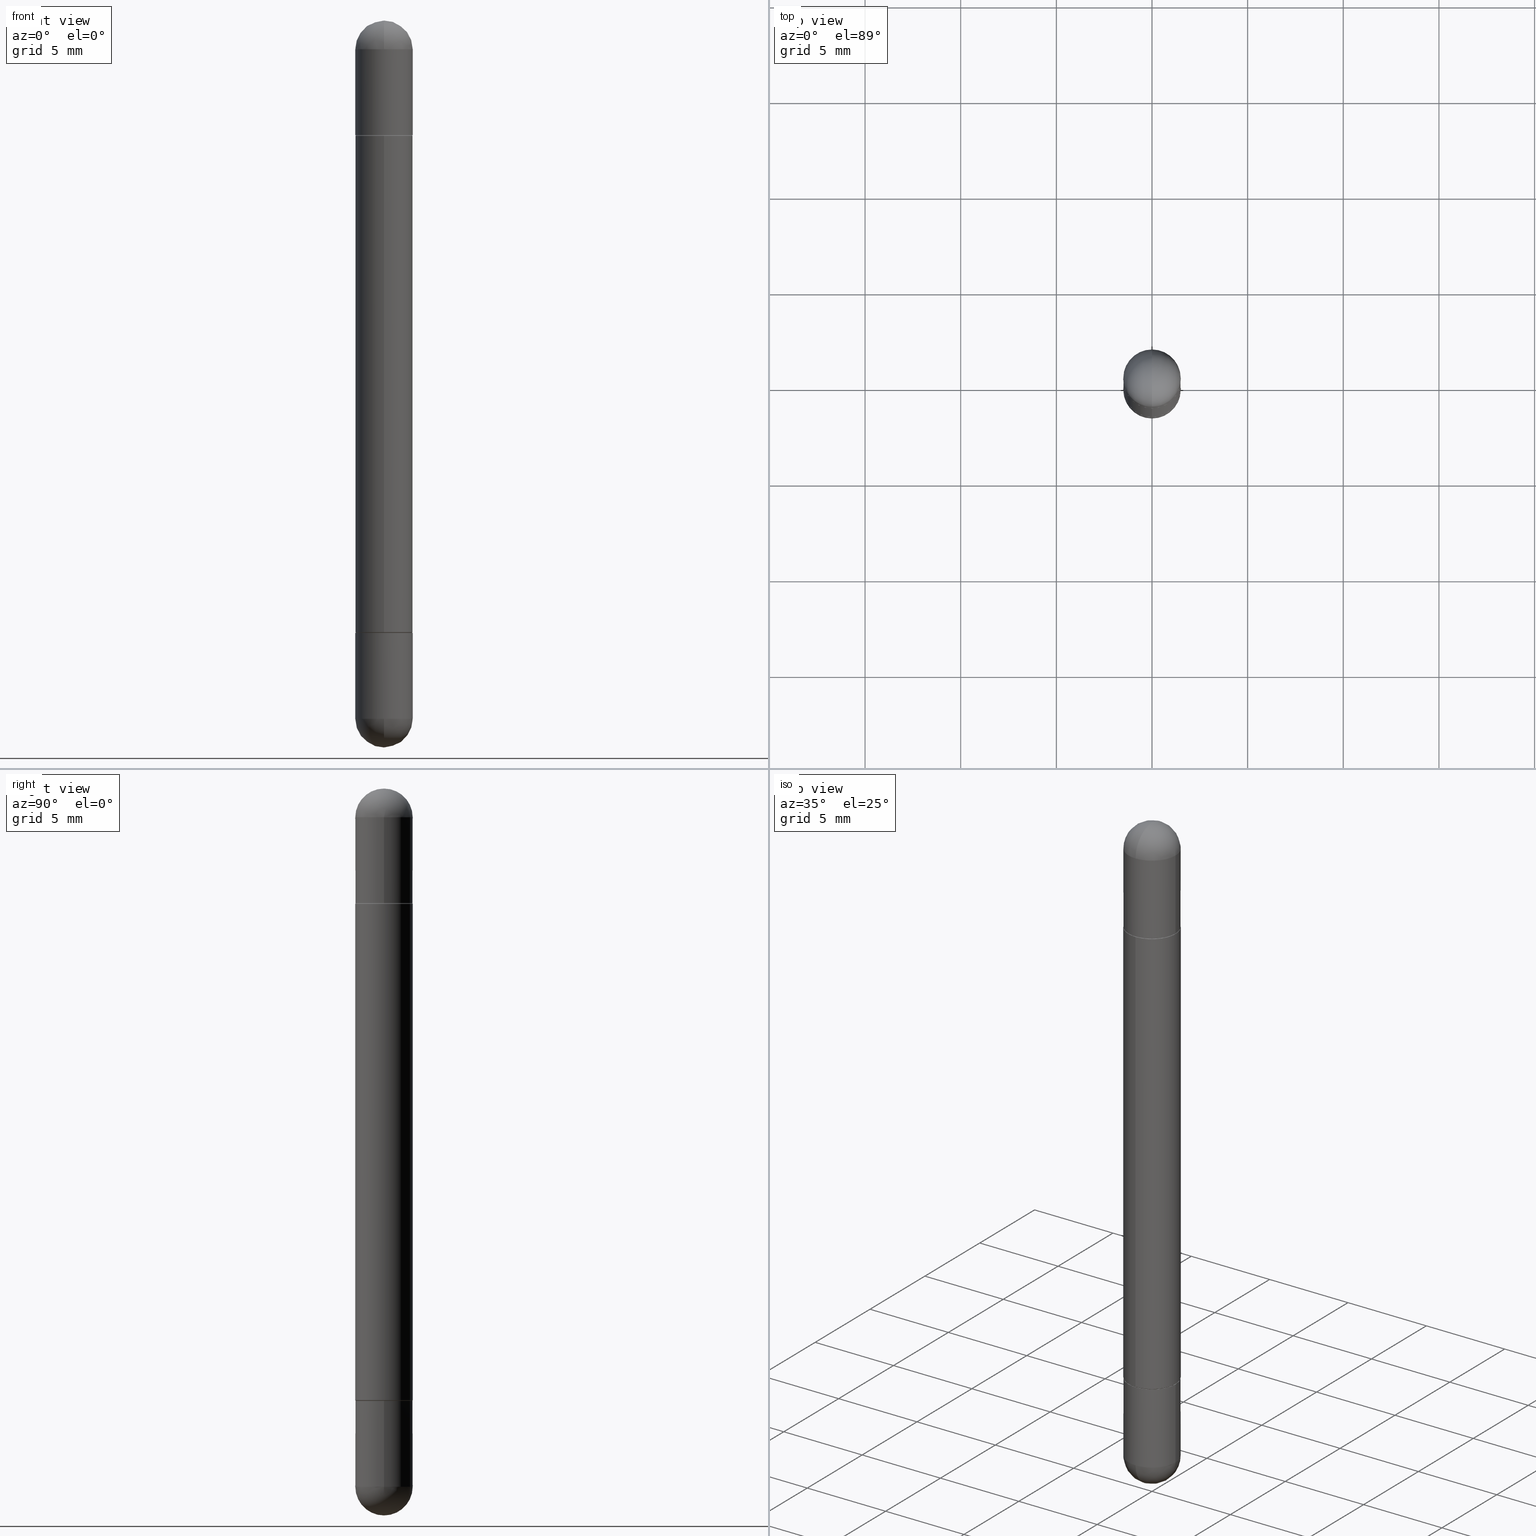
[diagram: canonical four-view strip — front | top / right | iso, engineering-drawing reading convention]
A machine part, canonical four-view strip (front | top / right | iso — engineering-drawing reading convention). The complete STEP part file that produces these views, byte-faithful:
ISO-10303-21;
HEADER;
FILE_DESCRIPTION (( 'STEP AP203' ),
    '1' );
FILE_NAME ('49119.STEP',
    '2024-03-01T12:53:46',
    ( '' ),
    ( '' ),
    'SwSTEP 2.0',
    'SolidWorks 2023',
    '' );
FILE_SCHEMA (( 'CONFIG_CONTROL_DESIGN' ));
ENDSEC;

DATA;
#1 = PERSON_AND_ORGANIZATION_ROLE ( 'design_owner' ) ;
#2 = DIRECTION ( 'NONE',  ( -2.445468806185136597E-29, 3.491481338843145583E-15, 1.000000000000000000 ) ) ;
#3 = ORIENTED_EDGE ( 'NONE', *, *, #436, .T. ) ;
#4 = ADVANCED_FACE ( 'NONE', ( #169 ), #607, .F. ) ;
#5 = ORIENTED_EDGE ( 'NONE', *, *, #523, .T. ) ;
#6 = ORIENTED_EDGE ( 'NONE', *, *, #561, .T. ) ;
#7 = DIRECTION ( 'NONE',  ( -4.937700262165390546E-15, -0.7071067811866658115, 0.7071067811864292230 ) ) ;
#8 = CLOSED_SHELL ( 'NONE', ( #577, #442, #423, #48, #754, #225, #223, #4 ) ) ;
#9 = EDGE_LOOP ( 'NONE', ( #653, #573, #470, #129, #483 ) ) ;
#10 = AXIS2_PLACEMENT_3D ( 'NONE', #765, #634, #201 ) ;
#11 = DIRECTION ( 'NONE',  ( -6.982962677686265922E-15, -1.000000000000000000, 4.626330217890358292E-15 ) ) ;
#12 = VECTOR ( 'NONE', #7, 39.37007874015748143 ) ;
#13 = EDGE_CURVE ( 'NONE', #519, #155, #730, .T. ) ;
#14 = EDGE_LOOP ( 'NONE', ( #770, #677 ) ) ;
#15 = VERTEX_POINT ( 'NONE', #422 ) ;
#16 = CARTESIAN_POINT ( 'NONE',  ( -4.123439461173441546E-16, -0.05905000000000452248, -0.2372000000000003272 ) ) ;
#17 = CARTESIAN_POINT ( 'NONE',  ( 1.832588647221437396E-29, -2.607140258145642371E-15, -0.7480500000000001037 ) ) ;
#18 = MANIFOLD_SOLID_BREP ( 'Combine1', #8 ) ;
#19 = DIRECTION ( 'NONE',  ( 2.449821064396012218E-29, -3.485248657370018036E-15, 1.000000000000000000 ) ) ;
#20 = ORIENTED_EDGE ( 'NONE', *, *, #75, .F. ) ;
#21 = ADVANCED_FACE ( 'NONE', ( #700 ), #389, .F. ) ;
#22 = CARTESIAN_POINT ( 'NONE',  ( -4.123439461173745750E-16, -0.05905000000000008159, -1.496100000000000430 ) ) ;
#23 = DESIGN_CONTEXT ( 'detailed design', #230, 'design' ) ;
#24 = EDGE_LOOP ( 'NONE', ( #239, #656 ) ) ;
#25 = DIRECTION ( 'NONE',  ( -6.982962677686265922E-15, -1.000000000000000000, 4.706025828879006204E-15 ) ) ;
#26 = ORIENTED_EDGE ( 'NONE', *, *, #581, .F. ) ;
#27 = CARTESIAN_POINT ( 'NONE',  ( 1.832588647221437396E-29, -2.607140258145642371E-15, -0.7480500000000001037 ) ) ;
#28 = DIRECTION ( 'NONE',  ( -2.445468806185136597E-29, 3.491481338843145583E-15, 1.000000000000000000 ) ) ;
#29 = AXIS2_PLACEMENT_3D ( 'NONE', #467, #19, #473 ) ;
#30 = AXIS2_PLACEMENT_3D ( 'NONE', #219, #156, #672 ) ;
#31 = APPROVAL_PERSON_ORGANIZATION ( #443, #800, #185 ) ;
#32 = SPHERICAL_SURFACE ( 'NONE', #449, 0.05905000000000025506 ) ;
#33 = ORIENTED_EDGE ( 'NONE', *, *, #641, .F. ) ;
#34 = PRODUCT_RELATED_PRODUCT_CATEGORY ( 'detail', '', ( #251 ) ) ;
#35 = DIRECTION ( 'NONE',  ( -2.445468806185136597E-29, 3.491481338843145583E-15, 1.000000000000000000 ) ) ;
#36 = CARTESIAN_POINT ( 'NONE',  ( 3.086529559032535160E-29, -4.391064783420485039E-15, -0.2362000000000003264 ) ) ;
#37 = CYLINDRICAL_SURFACE ( 'NONE', #708, 0.05905000000000008159 ) ;
#38 = DIRECTION ( 'NONE',  ( 1.000000000000000000, -6.982962677686266711E-15, 0.000000000000000000 ) ) ;
#39 = DIRECTION ( 'NONE',  ( -2.445468806185136597E-29, 3.491481338843145583E-15, -1.000000000000000000 ) ) ;
#40 = CIRCLE ( 'NONE', #322, 0.05905000000000001914 ) ;
#41 = CC_DESIGN_DATE_AND_TIME_ASSIGNMENT ( #808, #503, ( #381 ) ) ;
#42 = AXIS2_PLACEMENT_3D ( 'NONE', #537, #478, #212 ) ;
#43 = CIRCLE ( 'NONE', #435, 0.05905000000000014404 ) ;
#44 = CARTESIAN_POINT ( 'NONE',  ( 3.982519087706682683E-16, 0.05804999999999561899, -0.2362000000000001321 ) ) ;
#45 = LOCAL_TIME ( 7, 53, 45.00000000000000000, #325 ) ;
#46 = PLANE ( 'NONE',  #95 ) ;
#47 = DIRECTION ( 'NONE',  ( -2.445468806185136877E-29, 3.491481338843145188E-15, -1.000000000000000000 ) ) ;
#48 = ADVANCED_FACE ( 'NONE', ( #546 ), #175, .F. ) ;
#49 = FACE_OUTER_BOUND ( 'NONE', #252, .T. ) ;
#50 = EDGE_LOOP ( 'NONE', ( #154, #680 ) ) ;
#51 = CARTESIAN_POINT ( 'NONE',  ( 3.514260947928350449E-29, -5.017433257984542594E-15, -0.05905000000000028976 ) ) ;
#52 = LINE ( 'NONE', #497, #498 ) ;
#53 = CLOSED_SHELL ( 'NONE', ( #748, #284, #676, #21, #184 ) ) ;
#54 = VECTOR ( 'NONE', #167, 39.37007874015748143 ) ;
#55 = CALENDAR_DATE ( 2024, 1, 3 ) ;
#56 = ORIENTED_EDGE ( 'NONE', *, *, #523, .F. ) ;
#57 = AXIS2_PLACEMENT_3D ( 'NONE', #580, #412, #270 ) ;
#58 = CARTESIAN_POINT ( 'NONE',  ( -4.051124067683763770E-16, -0.05905000000000539678, -0.05905000000000049099 ) ) ;
#59 = EDGE_CURVE ( 'NONE', #353, #776, #229, .T. ) ;
#60 = DIRECTION ( 'NONE',  ( -6.982962677686265922E-15, -1.000000000000000000, -3.529519371659254456E-15 ) ) ;
#61 = PERSON_AND_ORGANIZATION ( #406, #96 ) ;
#62 = CARTESIAN_POINT ( 'NONE',  ( 3.183141170014464762E-29, -5.491615626124592102E-15, -1.437049999999999939 ) ) ;
#63 = ORIENTED_EDGE ( 'NONE', *, *, #472, .T. ) ;
#64 = APPROVAL ( #246, 'UNSPECIFIED' ) ;
#65 = VECTOR ( 'NONE', #98, 39.37007874015748143 ) ;
#66 = APPROVAL_STATUS ( 'not_yet_approved' ) ;
#67 = AXIS2_PLACEMENT_3D ( 'NONE', #756, #630, #578 ) ;
#68 = FACE_OUTER_BOUND ( 'NONE', #86, .T. ) ;
#69 = VERTEX_POINT ( 'NONE', #665 ) ;
#70 = EDGE_CURVE ( 'NONE', #590, #704, #620, .T. ) ;
#71 = CARTESIAN_POINT ( 'NONE',  ( -0.05905000000000001914, -4.288599812930171320E-15, -1.437049999999999939 ) ) ;
#72 = DIRECTION ( 'NONE',  ( -2.449821064396011658E-29, 3.485248657370018430E-15, -1.000000000000000000 ) ) ;
#73 = ORIENTED_EDGE ( 'NONE', *, *, #99, .T. ) ;
#74 = CARTESIAN_POINT ( 'NONE',  ( 3.084079737968140316E-29, -4.387579534763115600E-15, -0.2372000000000001330 ) ) ;
#75 = EDGE_CURVE ( 'NONE', #452, #521, #334, .T. ) ;
#76 = ORIENTED_EDGE ( 'NONE', *, *, #604, .T. ) ;
#77 = CARTESIAN_POINT ( 'NONE',  ( 3.086529559032535160E-29, -4.391064783420485039E-15, -1.259899999999999798 ) ) ;
#78 = CIRCLE ( 'NONE', #241, 0.05905000000000025506 ) ;
#79 = ORIENTED_EDGE ( 'NONE', *, *, #349, .F. ) ;
#80 = AXIS2_PLACEMENT_3D ( 'NONE', #237, #361, #102 ) ;
#81 = FACE_OUTER_BOUND ( 'NONE', #260, .T. ) ;
#82 = EDGE_CURVE ( 'NONE', #69, #391, #40, .T. ) ;
#83 = CIRCLE ( 'NONE', #351, 0.05905000000000008159 ) ;
#84 = LOCAL_TIME ( 7, 53, 45.00000000000000000, #576 ) ;
#85 = CARTESIAN_POINT ( 'NONE',  ( 3.183141170014464762E-29, -5.491615626124592102E-15, -0.05905000000000028976 ) ) ;
#86 = EDGE_LOOP ( 'NONE', ( #713, #79, #579, #777 ) ) ;
#87 = DIRECTION ( 'NONE',  ( 2.445468806185136597E-29, -3.491481338843145583E-15, 1.000000000000000000 ) ) ;
#88 = LINE ( 'NONE', #417, #12 ) ;
#89 = ORIENTED_EDGE ( 'NONE', *, *, #280, .T. ) ;
#90 = DIRECTION ( 'NONE',  ( 1.000000000000000000, -6.982962677686270655E-15, 0.000000000000000000 ) ) ;
#91 = EDGE_CURVE ( 'NONE', #330, #307, #363, .T. ) ;
#92 = CARTESIAN_POINT ( 'NONE',  ( 3.081046148912652946E-29, -4.398917338808479031E-15, -0.2362000000000003264 ) ) ;
#93 = CARTESIAN_POINT ( 'NONE',  ( 3.086529559032535160E-29, -4.391064783420485039E-15, -1.259899999999999798 ) ) ;
#94 = CARTESIAN_POINT ( 'NONE',  ( 3.330070981488499955E-29, -5.694171829508798064E-15, -1.496100000000000207 ) ) ;
#95 = AXIS2_PLACEMENT_3D ( 'NONE', #618, #682, #747 ) ;
#96 = ORGANIZATION ( 'UNSPECIFIED', 'UNSPECIFIED', '' ) ;
#97 = CARTESIAN_POINT ( 'NONE',  ( 4.123439461174084467E-16, 0.05904999999999487742, -1.437050000000000161 ) ) ;
#98 = DIRECTION ( 'NONE',  ( -4.937700262165390546E-15, -0.7071067811866658115, -0.7071067811864292230 ) ) ;
#99 = EDGE_CURVE ( 'NONE', #109, #624, #783, .T. ) ;
#100 = DIRECTION ( 'NONE',  ( 4.851104656541791790E-15, 0.7071067811866706965, -0.7071067811864243380 ) ) ;
#101 = ORIENTED_EDGE ( 'NONE', *, *, #108, .F. ) ;
#102 = DIRECTION ( 'NONE',  ( 1.000000000000000000, -6.982962677686270655E-15, 0.000000000000000000 ) ) ;
#103 = FACE_OUTER_BOUND ( 'NONE', #592, .T. ) ;
#104 = ORIENTED_EDGE ( 'NONE', *, *, #731, .F. ) ;
#105 = DIRECTION ( 'NONE',  ( -2.449821064396012218E-29, 3.485248657370018036E-15, 1.000000000000000000 ) ) ;
#106 = CIRCLE ( 'NONE', #560, 0.05805000000000000437 ) ;
#107 = CONICAL_SURFACE ( 'NONE', #735, 0.05805000000000000437, 0.7853981633976190313 ) ;
#108 = EDGE_CURVE ( 'NONE', #206, #521, #794, .T. ) ;
#109 = VERTEX_POINT ( 'NONE', #357 ) ;
#110 = CC_DESIGN_APPROVAL ( #800, ( #381 ) ) ;
#111 = FACE_OUTER_BOUND ( 'NONE', #420, .T. ) ;
#112 = ORIENTED_EDGE ( 'NONE', *, *, #287, .F. ) ;
#113 = DIRECTION ( 'NONE',  ( -6.982962677686265922E-15, -1.000000000000000000, -3.529519371659254456E-15 ) ) ;
#114 = CARTESIAN_POINT ( 'NONE',  ( 3.081046148912652946E-29, -4.398917338808479031E-15, -1.259899999999999798 ) ) ;
#115 = CARTESIAN_POINT ( 'NONE',  ( 3.514260947928350449E-29, -5.017433257984542594E-15, -0.05905000000000028976 ) ) ;
#116 = APPROVAL_DATE_TIME ( #810, #800 ) ;
#117 = ORIENTED_EDGE ( 'NONE', *, *, #552, .F. ) ;
#118 = EDGE_CURVE ( 'NONE', #440, #336, #278, .T. ) ;
#119 = CARTESIAN_POINT ( 'NONE',  ( 4.051124067684407678E-16, 0.05904999999999576560, -0.2371999999999999387 ) ) ;
#120 = AXIS2_PLACEMENT_3D ( 'NONE', #693, #818, #762 ) ;
#121 = PERSON_AND_ORGANIZATION ( #406, #96 ) ;
#122 = CARTESIAN_POINT ( 'NONE',  ( 3.081046148912652946E-29, -4.398917338808479031E-15, -0.2362000000000003264 ) ) ;
#123 = DATE_AND_TIME ( #697, #489 ) ;
#124 = ORIENTED_EDGE ( 'NONE', *, *, #710, .F. ) ;
#125 = DIRECTION ( 'NONE',  ( -2.449821064396012218E-29, 3.485248657370018036E-15, -1.000000000000000000 ) ) ;
#126 = CC_DESIGN_PERSON_AND_ORGANIZATION_ASSIGNMENT ( #379, #1, ( #251 ) ) ;
#127 = COORDINATED_UNIVERSAL_TIME_OFFSET ( 5, 0, .BEHIND. ) ;
#128 = DIRECTION ( 'NONE',  ( -2.449821064396012218E-29, 3.485248657370018430E-15, -1.000000000000000000 ) ) ;
#129 = ORIENTED_EDGE ( 'NONE', *, *, #70, .T. ) ;
#130 = ADVANCED_FACE ( 'NONE', ( #81 ), #214, .T. ) ;
#131 = AXIS2_PLACEMENT_3D ( 'NONE', #595, #678, #161 ) ;
#132 = CONICAL_SURFACE ( 'NONE', #395, 0.05805000000000000437, 0.7853981633976190313 ) ;
#133 = CARTESIAN_POINT ( 'NONE',  ( 3.514260947928350449E-29, -5.017433257984542594E-15, -1.437049999999999939 ) ) ;
#134 = AXIS2_PLACEMENT_3D ( 'NONE', #261, #759, #195 ) ;
#135 = CC_DESIGN_APPROVAL ( #64, ( #268 ) ) ;
#136 = EDGE_LOOP ( 'NONE', ( #101, #705, #183, #556 ) ) ;
#137 = DIRECTION ( 'NONE',  ( 1.000000000000000000, -6.982962677686265922E-15, -4.883557194083112340E-29 ) ) ;
#138 = ORIENTED_EDGE ( 'NONE', *, *, #306, .T. ) ;
#139 = ORIENTED_EDGE ( 'NONE', *, *, #782, .F. ) ;
#140 = ORIENTED_EDGE ( 'NONE', *, *, #345, .F. ) ;
#141 = ORIENTED_EDGE ( 'NONE', *, *, #13, .F. ) ;
#142 = CARTESIAN_POINT ( 'NONE',  ( 3.514260947928350449E-29, -5.017433257984542594E-15, -1.437049999999999939 ) ) ;
#143 = EDGE_CURVE ( 'NONE', #276, #776, #415, .T. ) ;
#144 = ORIENTED_EDGE ( 'NONE', *, *, #166, .T. ) ;
#145 = DIRECTION ( 'NONE',  ( 1.000000000000000000, -6.982962677686266711E-15, 4.876176775795935793E-29 ) ) ;
#146 = CARTESIAN_POINT ( 'NONE',  ( 4.016821577695545181E-16, 0.05804999999999561899, -0.2362000000000001321 ) ) ;
#147 = VERTEX_POINT ( 'NONE', #658 ) ;
#148 = VERTEX_POINT ( 'NONE', #224 ) ;
#149 = AXIS2_PLACEMENT_3D ( 'NONE', #526, #35, #145 ) ;
#150 = DIRECTION ( 'NONE',  ( -2.449821064396012218E-29, 3.485248657370018036E-15, 1.000000000000000000 ) ) ;
#151 = AXIS2_PLACEMENT_3D ( 'NONE', #525, #331, #724 ) ;
#152 = ORIENTED_EDGE ( 'NONE', *, *, #610, .T. ) ;
#153 = CARTESIAN_POINT ( 'NONE',  ( 4.123439461174084467E-16, 0.05904999999999487742, -0.05905000000000008159 ) ) ;
#154 = ORIENTED_EDGE ( 'NONE', *, *, #430, .T. ) ;
#155 = VERTEX_POINT ( 'NONE', #466 ) ;
#156 = DIRECTION ( 'NONE',  ( -2.449821064396012218E-29, 3.485248657370018036E-15, -1.000000000000000000 ) ) ;
#157 = CARTESIAN_POINT ( 'NONE',  ( 3.514260947928350449E-29, -5.017433257984542594E-15, -1.437049999999999939 ) ) ;
#158 = CARTESIAN_POINT ( 'NONE',  ( 3.081046148912652946E-29, -4.398917338808479031E-15, -0.2362000000000003264 ) ) ;
#159 = DIRECTION ( 'NONE',  ( -2.445468806185136877E-29, 3.491481338843145188E-15, 1.000000000000000000 ) ) ;
#160 = CARTESIAN_POINT ( 'NONE',  ( 0.05905000000000001914, -4.123439461173741806E-16, -1.496100000000000207 ) ) ;
#161 = DIRECTION ( 'NONE',  ( -6.982962677686265922E-15, -1.000000000000000000, -3.529519371659254456E-15 ) ) ;
#162 = AXIS2_PLACEMENT_3D ( 'NONE', #226, #688, #771 ) ;
#163 = CIRCLE ( 'NONE', #10, 0.05905000000000001914 ) ;
#164 = CIRCLE ( 'NONE', #475, 0.05805000000000000437 ) ;
#165 = DIRECTION ( 'NONE',  ( -2.449821064396012218E-29, 3.485248657370018036E-15, 1.000000000000000000 ) ) ;
#166 = EDGE_CURVE ( 'NONE', #109, #391, #78, .T. ) ;
#167 = DIRECTION ( 'NONE',  ( -2.445468806185136877E-29, 3.491481338843145188E-15, -1.000000000000000000 ) ) ;
#168 = DIRECTION ( 'NONE',  ( -2.445468806185136877E-29, 3.491481338843145188E-15, -1.000000000000000000 ) ) ;
#169 = FACE_OUTER_BOUND ( 'NONE', #661, .T. ) ;
#170 = DIRECTION ( 'NONE',  ( -2.445468806185136597E-29, 3.491481338843145583E-15, -1.000000000000000000 ) ) ;
#171 = ADVANCED_FACE ( 'NONE', ( #222 ), #715, .T. ) ;
#172 = EDGE_LOOP ( 'NONE', ( #463, #339 ) ) ;
#173 = EDGE_LOOP ( 'NONE', ( #321, #344, #20, #657, #63 ) ) ;
#174 = CARTESIAN_POINT ( 'NONE',  ( 3.183141170014464762E-29, -5.491615626124592102E-15, -0.05905000000000028976 ) ) ;
#175 = PLANE ( 'NONE',  #755 ) ;
#176 = CARTESIAN_POINT ( 'NONE',  ( -4.053609834396569077E-16, -0.05805000000000438976, -0.2362000000000005484 ) ) ;
#177 = AXIS2_PLACEMENT_3D ( 'NONE', #303, #542, #365 ) ;
#178 = APPLICATION_CONTEXT ( 'configuration controlled 3d designs of mechanical parts and assemblies' ) ;
#179 = ORIENTED_EDGE ( 'NONE', *, *, #613, .F. ) ;
#180 = AXIS2_PLACEMENT_3D ( 'NONE', #227, #232, #427 ) ;
#181 = LINE ( 'NONE', #44, #192 ) ;
#182 = CARTESIAN_POINT ( 'NONE',  ( -0.05905000000000001914, -4.303062891628101254E-15, -0.2362000000000003264 ) ) ;
#183 = ORIENTED_EDGE ( 'NONE', *, *, #779, .T. ) ;
#184 = ADVANCED_FACE ( 'NONE', ( #343 ), #729, .T. ) ;
#185 = APPROVAL_ROLE ( '' ) ;
#186 = ORIENTED_EDGE ( 'NONE', *, *, #403, .F. ) ;
#187 = LINE ( 'NONE', #444, #54 ) ;
#188 = DATE_AND_TIME ( #249, #84 ) ;
#189 = DIRECTION ( 'NONE',  ( 2.445468806185136597E-29, -3.491481338843145583E-15, 1.000000000000000000 ) ) ;
#190 = AXIS2_PLACEMENT_3D ( 'NONE', #753, #565, #712 ) ;
#191 = PERSON_AND_ORGANIZATION ( #406, #96 ) ;
#192 = VECTOR ( 'NONE', #100, 39.37007874015748143 ) ;
#193 = DIRECTION ( 'NONE',  ( -2.449821064396012218E-29, 3.485248657370018036E-15, -1.000000000000000000 ) ) ;
#194 = EDGE_CURVE ( 'NONE', #332, #723, #757, .T. ) ;
#195 = DIRECTION ( 'NONE',  ( 1.000000000000000000, 0.000000000000000000, 0.000000000000000000 ) ) ;
#196 = CYLINDRICAL_SURFACE ( 'NONE', #366, 0.05905000000000008159 ) ;
#197 = ORIENTED_EDGE ( 'NONE', *, *, #82, .T. ) ;
#198 = EDGE_CURVE ( 'NONE', #667, #276, #459, .T. ) ;
#199 = VERTEX_POINT ( 'NONE', #269 ) ;
#200 = APPROVAL_DATE_TIME ( #817, #772 ) ;
#201 = DIRECTION ( 'NONE',  ( 1.000000000000000000, -6.982962677686270655E-15, 0.000000000000000000 ) ) ;
#202 = ORIENTED_EDGE ( 'NONE', *, *, #264, .F. ) ;
#203 = AXIS2_PLACEMENT_3D ( 'NONE', #392, #644, #425 ) ;
#204 = CARTESIAN_POINT ( 'NONE',  ( 0.000000000000000000, 0.000000000000000000, -1.496100000000000207 ) ) ;
#205 = VECTOR ( 'NONE', #402, 39.37007874015748143 ) ;
#206 = VERTEX_POINT ( 'NONE', #663 ) ;
#207 = CARTESIAN_POINT ( 'NONE',  ( 4.123439461174084467E-16, 0.05904999999999487742, -0.05905000000000008159 ) ) ;
#208 = ORIENTED_EDGE ( 'NONE', *, *, #13, .T. ) ;
#209 = CARTESIAN_POINT ( 'NONE',  ( 3.514260947928350449E-29, -5.017433257984542594E-15, -0.05905000000000028976 ) ) ;
#210 = ORIENTED_EDGE ( 'NONE', *, *, #681, .T. ) ;
#211 = CARTESIAN_POINT ( 'NONE',  ( 3.982519087706682683E-16, 0.05804999999999561899, -0.2362000000000001321 ) ) ;
#212 = DIRECTION ( 'NONE',  ( -6.982962677686265922E-15, -1.000000000000000000, -3.529519371659254456E-15 ) ) ;
#213 = ORIENTED_EDGE ( 'NONE', *, *, #681, .F. ) ;
#214 = CONICAL_SURFACE ( 'NONE', #131, 0.05805000000000000437, 0.7853981633976190313 ) ;
#215 = FACE_OUTER_BOUND ( 'NONE', #788, .T. ) ;
#216 = CIRCLE ( 'NONE', #684, 0.05905000000000001914 ) ;
#217 = EDGE_CURVE ( 'NONE', #333, #147, #574, .T. ) ;
#218 = AXIS2_PLACEMENT_3D ( 'NONE', #92, #728, #468 ) ;
#219 = CARTESIAN_POINT ( 'NONE',  ( 0.000000000000000000, 0.000000000000000000, -1.496100000000000207 ) ) ;
#220 = DIRECTION ( 'NONE',  ( -2.449821064396012218E-29, 3.485248657370018036E-15, 1.000000000000000000 ) ) ;
#221 = ORIENTED_EDGE ( 'NONE', *, *, #70, .F. ) ;
#222 = FACE_OUTER_BOUND ( 'NONE', #699, .T. ) ;
#223 = ADVANCED_FACE ( 'NONE', ( #719 ), #132, .T. ) ;
#224 = CARTESIAN_POINT ( 'NONE',  ( 0.05905000000000001914, -4.811261284925853162E-15, -1.259899999999999798 ) ) ;
#225 = ADVANCED_FACE ( 'NONE', ( #277 ), #529, .T. ) ;
#226 = CARTESIAN_POINT ( 'NONE',  ( 3.514260947928350449E-29, -5.017433257984542594E-15, -0.05905000000000028976 ) ) ;
#227 = CARTESIAN_POINT ( 'NONE',  ( 3.086529559032535160E-29, -4.391064783420485039E-15, -0.2362000000000003264 ) ) ;
#228 = DIRECTION ( 'NONE',  ( -4.937700262165390546E-15, -0.7071067811866658115, -0.7071067811864292230 ) ) ;
#229 = CIRCLE ( 'NONE', #29, 0.05905000000000014404 ) ;
#230 = APPLICATION_CONTEXT ( 'configuration controlled 3d designs of mechanical parts and assemblies' ) ;
#231 = VECTOR ( 'NONE', #47, 39.37007874015748143 ) ;
#232 = DIRECTION ( 'NONE',  ( -2.449821064396012218E-29, 3.485248657370018036E-15, -1.000000000000000000 ) ) ;
#233 = FACE_OUTER_BOUND ( 'NONE', #635, .T. ) ;
#234 = CARTESIAN_POINT ( 'NONE',  ( 0.05905000000000001914, -4.811261284925853162E-15, -0.2362000000000003264 ) ) ;
#235 = ORIENTED_EDGE ( 'NONE', *, *, #143, .F. ) ;
#236 = VERTEX_POINT ( 'NONE', #94 ) ;
#237 = CARTESIAN_POINT ( 'NONE',  ( 3.514260947928350449E-29, -5.017433257984542594E-15, -0.05905000000000028976 ) ) ;
#238 = FACE_OUTER_BOUND ( 'NONE', #172, .T. ) ;
#239 = ORIENTED_EDGE ( 'NONE', *, *, #287, .T. ) ;
#240 = CARTESIAN_POINT ( 'NONE',  ( 4.051124067684279981E-16, 0.05904999999999575866, -1.258900000000000352 ) ) ;
#241 = AXIS2_PLACEMENT_3D ( 'NONE', #781, #271, #522 ) ;
#242 = VECTOR ( 'NONE', #567, 39.37007874015748143 ) ;
#243 = CC_DESIGN_APPROVAL ( #772, ( #500 ) ) ;
#244 = LINE ( 'NONE', #557, #257 ) ;
#245 = FACE_OUTER_BOUND ( 'NONE', #433, .T. ) ;
#246 = APPROVAL_STATUS ( 'not_yet_approved' ) ;
#247 = FACE_OUTER_BOUND ( 'NONE', #9, .T. ) ;
#248 = ADVANCED_FACE ( 'NONE', ( #606 ), #789, .F. ) ;
#249 = CALENDAR_DATE ( 2024, 1, 3 ) ;
#250 = SPHERICAL_SURFACE ( 'NONE', #67, 0.05905000000000025506 ) ;
#251 = PRODUCT ( '49119', '49119', '', ( #501 ) ) ;
#252 = EDGE_LOOP ( 'NONE', ( #335, #405, #686, #221, #186 ) ) ;
#253 = VECTOR ( 'NONE', #439, 39.37007874015748143 ) ;
#254 = CIRCLE ( 'NONE', #311, 0.05905000000000014404 ) ;
#255 = CALENDAR_DATE ( 2024, 1, 3 ) ;
#256 = ADVANCED_FACE ( 'NONE', ( #49 ), #798, .T. ) ;
#257 = VECTOR ( 'NONE', #485, 39.37007874015748143 ) ;
#258 = DIRECTION ( 'NONE',  ( 1.000000000000000000, -6.982962677686270655E-15, 0.000000000000000000 ) ) ;
#259 = ADVANCED_FACE ( 'NONE', ( #233 ), #37, .T. ) ;
#260 = EDGE_LOOP ( 'NONE', ( #649, #370, #583, #235 ) ) ;
#261 = CARTESIAN_POINT ( 'NONE',  ( 0.000000000000000000, 0.000000000000000000, 0.000000000000000000 ) ) ;
#262 = LINE ( 'NONE', #461, #530 ) ;
#263 = CARTESIAN_POINT ( 'NONE',  ( 3.514260947928350449E-29, -5.017433257984542594E-15, -0.05905000000000028976 ) ) ;
#264 = EDGE_CURVE ( 'NONE', #622, #541, #52, .T. ) ;
#265 = AXIS2_PLACEMENT_3D ( 'NONE', #313, #125, #60 ) ;
#266 = DIRECTION ( 'NONE',  ( -6.982962677686265922E-15, -1.000000000000000000, 4.706025828879006204E-15 ) ) ;
#267 = AXIS2_PLACEMENT_3D ( 'NONE', #142, #342, #527 ) ;
#268 = PRODUCT_DEFINITION_FORMATION_WITH_SPECIFIED_SOURCE ( 'ANY', '', #251, .NOT_KNOWN. ) ;
#269 = CARTESIAN_POINT ( 'NONE',  ( 4.051124067684407678E-16, 0.05904999999999576560, -0.2371999999999999387 ) ) ;
#270 = DIRECTION ( 'NONE',  ( 6.982962677686265922E-15, 1.000000000000000000, -4.626330217890349615E-15 ) ) ;
#271 = DIRECTION ( 'NONE',  ( 1.000000000000000000, -6.860497997771530774E-15, -4.840798879624142912E-29 ) ) ;
#272 = ADVANCED_FACE ( 'NONE', ( #245 ), #555, .F. ) ;
#273 = ORIENTED_EDGE ( 'NONE', *, *, #91, .F. ) ;
#274 = ORIENTED_EDGE ( 'NONE', *, *, #356, .T. ) ;
#275 = DIRECTION ( 'NONE',  ( -7.105427357601001070E-15, -1.000000000000000000, 0.000000000000000000 ) ) ;
#276 = VERTEX_POINT ( 'NONE', #176 ) ;
#277 = FACE_OUTER_BOUND ( 'NONE', #816, .T. ) ;
#278 = CIRCLE ( 'NONE', #447, 0.05905000000000001914 ) ;
#279 = DIRECTION ( 'NONE',  ( -6.982962677686265922E-15, -1.000000000000000000, 4.706025828879006204E-15 ) ) ;
#280 = EDGE_CURVE ( 'NONE', #456, #314, #106, .T. ) ;
#281 = CIRCLE ( 'NONE', #382, 0.05905000000000025506 ) ;
#282 = ORIENTED_EDGE ( 'NONE', *, *, #416, .T. ) ;
#283 = DIRECTION ( 'NONE',  ( 2.445468806185136597E-29, -3.491481338843145583E-15, 1.000000000000000000 ) ) ;
#284 = ADVANCED_FACE ( 'NONE', ( #502 ), #308, .T. ) ;
#285 = CARTESIAN_POINT ( 'NONE',  ( 0.05905000000000001914, -5.120519244513884944E-15, -0.05905000000000028976 ) ) ;
#286 = DIRECTION ( 'NONE',  ( -1.000000000000000000, 6.982962677686265922E-15, 4.883557194083112340E-29 ) ) ;
#287 = EDGE_CURVE ( 'NONE', #622, #288, #804, .T. ) ;
#288 = VERTEX_POINT ( 'NONE', #429 ) ;
#289 = DIRECTION ( 'NONE',  ( -6.982962677686265922E-15, -1.000000000000000000, 3.485248657370018430E-15 ) ) ;
#290 = DIRECTION ( 'NONE',  ( -2.449821064396012218E-29, 3.485248657370018036E-15, -1.000000000000000000 ) ) ;
#291 = DIMENSIONAL_EXPONENTS ( 1.000000000000000000, 0.000000000000000000, 0.000000000000000000, 0.000000000000000000, 0.000000000000000000, 0.000000000000000000, 0.000000000000000000 ) ;
#292 = DIRECTION ( 'NONE',  ( 6.982962677686265922E-15, 1.000000000000000000, 3.469747663417762014E-15 ) ) ;
#293 = MANIFOLD_SOLID_BREP ( 'Body-Move/Copy2[1]', #558 ) ;
#294 = ADVANCED_FACE ( 'NONE', ( #683 ), #46, .F. ) ;
#295 = FACE_OUTER_BOUND ( 'NONE', #480, .T. ) ;
#296 = CARTESIAN_POINT ( 'NONE',  ( 0.000000000000000000, 0.000000000000000000, -1.496100000000000207 ) ) ;
#297 = AXIS2_PLACEMENT_3D ( 'NONE', #93, #532, #289 ) ;
#298 = CIRCLE ( 'NONE', #721, 0.05905000000000001914 ) ;
#299 = CIRCLE ( 'NONE', #218, 0.05905000000000001914 ) ;
#300 = LOCAL_TIME ( 7, 53, 45.00000000000000000, #513 ) ;
#301 = PLANE ( 'NONE',  #722 ) ;
#302 = ORIENTED_EDGE ( 'NONE', *, *, #750, .T. ) ;
#303 = CARTESIAN_POINT ( 'NONE',  ( 3.086529559032535160E-29, -4.391064783420485039E-15, -0.2362000000000003264 ) ) ;
#304 = CARTESIAN_POINT ( 'NONE',  ( 0.05905000000000001914, -4.123439461173741806E-16, -1.496100000000000207 ) ) ;
#305 = DIRECTION ( 'NONE',  ( 1.000000000000000000, -6.982962677686270655E-15, 0.000000000000000000 ) ) ;
#306 = EDGE_CURVE ( 'NONE', #608, #333, #187, .T. ) ;
#307 = VERTEX_POINT ( 'NONE', #739 ) ;
#308 = SPHERICAL_SURFACE ( 'NONE', #518, 0.05905000000000025506 ) ;
#309 = DIRECTION ( 'NONE',  ( 1.000000000000000000, -6.982962677686270655E-15, 0.000000000000000000 ) ) ;
#310 = CARTESIAN_POINT ( 'NONE',  ( 3.183141170014464762E-29, -5.491615626124592102E-15, -0.05905000000000028976 ) ) ;
#311 = AXIS2_PLACEMENT_3D ( 'NONE', #615, #165, #554 ) ;
#312 = CALENDAR_DATE ( 2024, 1, 3 ) ;
#313 = CARTESIAN_POINT ( 'NONE',  ( 3.086529559032535160E-29, -4.391064783420485039E-15, -0.2362000000000003264 ) ) ;
#314 = VERTEX_POINT ( 'NONE', #691 ) ;
#315 = EDGE_CURVE ( 'NONE', #521, #608, #448, .T. ) ;
#316 =( NAMED_UNIT ( * ) SI_UNIT ( $, .STERADIAN. ) SOLID_ANGLE_UNIT ( ) );
#317 = CARTESIAN_POINT ( 'NONE',  ( 0.05905000000000001914, -5.120519244513884944E-15, -0.05905000000000028976 ) ) ;
#318 = EDGE_CURVE ( 'NONE', #288, #622, #600, .T. ) ;
#319 = APPROVAL_ROLE ( '' ) ;
#320 = FACE_OUTER_BOUND ( 'NONE', #551, .T. ) ;
#321 = ORIENTED_EDGE ( 'NONE', *, *, #306, .F. ) ;
#322 = AXIS2_PLACEMENT_3D ( 'NONE', #209, #283, #90 ) ;
#323 = CIRCLE ( 'NONE', #486, 0.05905000000000001914 ) ;
#324 = CIRCLE ( 'NONE', #616, 0.05905000000000001914 ) ;
#325 = COORDINATED_UNIVERSAL_TIME_OFFSET ( 5, 0, .BEHIND. ) ;
#326 = CARTESIAN_POINT ( 'NONE',  ( 3.081046148912652946E-29, -4.398917338808479031E-15, -1.259899999999999798 ) ) ;
#327 = ORIENTED_EDGE ( 'NONE', *, *, #315, .T. ) ;
#328 =( CONVERSION_BASED_UNIT ( 'INCH', #362 ) LENGTH_UNIT ( ) NAMED_UNIT ( #291 ) );
#329 = SPHERICAL_SURFACE ( 'NONE', #57, 0.05905000000000025506 ) ;
#330 = VERTEX_POINT ( 'NONE', #801 ) ;
#331 = DIRECTION ( 'NONE',  ( 2.449821064396012218E-29, -3.485248657370018036E-15, 1.000000000000000000 ) ) ;
#332 = VERTEX_POINT ( 'NONE', #240 ) ;
#333 = VERTEX_POINT ( 'NONE', #182 ) ;
#334 = CIRCLE ( 'NONE', #162, 0.05905000000000001914 ) ;
#335 = ORIENTED_EDGE ( 'NONE', *, *, #82, .F. ) ;
#336 = VERTEX_POINT ( 'NONE', #494 ) ;
#337 = DIRECTION ( 'NONE',  ( -2.449821064396012218E-29, 3.485248657370018430E-15, -1.000000000000000000 ) ) ;
#338 = VECTOR ( 'NONE', #424, 39.37007874015748143 ) ;
#339 = ORIENTED_EDGE ( 'NONE', *, *, #651, .F. ) ;
#340 = CARTESIAN_POINT ( 'NONE',  ( 0.000000000000000000, 0.000000000000000000, -1.496100000000000207 ) ) ;
#341 = EDGE_LOOP ( 'NONE', ( #696, #26, #640, #458 ) ) ;
#342 = DIRECTION ( 'NONE',  ( -2.445468806185136597E-29, 3.491481338843145583E-15, 1.000000000000000000 ) ) ;
#343 = FACE_OUTER_BOUND ( 'NONE', #173, .T. ) ;
#344 = ORIENTED_EDGE ( 'NONE', *, *, #315, .F. ) ;
#345 = EDGE_CURVE ( 'NONE', #336, #148, #743, .T. ) ;
#346 = DIRECTION ( 'NONE',  ( 1.000000000000000000, -6.860497997771530774E-15, -4.840798879624142912E-29 ) ) ;
#347 = DIRECTION ( 'NONE',  ( -6.982962677686266711E-15, -1.000000000000000000, 0.000000000000000000 ) ) ;
#348 = DIRECTION ( 'NONE',  ( 1.000000000000000000, -6.982962677686270655E-15, 0.000000000000000000 ) ) ;
#349 = EDGE_CURVE ( 'NONE', #776, #353, #614, .T. ) ;
#350 = AXIS2_PLACEMENT_3D ( 'NONE', #296, #39, #548 ) ;
#351 = AXIS2_PLACEMENT_3D ( 'NONE', #27, #482, #593 ) ;
#352 = DIRECTION ( 'NONE',  ( 1.000000000000000000, -6.982962677686266711E-15, 0.000000000000000000 ) ) ;
#353 = VERTEX_POINT ( 'NONE', #119 ) ;
#354 = DIRECTION ( 'NONE',  ( 2.438088387897960049E-29, -3.491481338843145188E-15, 1.000000000000000000 ) ) ;
#355 = ORIENTED_EDGE ( 'NONE', *, *, #280, .F. ) ;
#356 = EDGE_CURVE ( 'NONE', #590, #624, #298, .T. ) ;
#357 = CARTESIAN_POINT ( 'NONE',  ( 3.330070981488499955E-29, -5.694171829508798064E-15, -3.414809992080329023E-17 ) ) ;
#358 = ORIENTED_EDGE ( 'NONE', *, *, #664, .T. ) ;
#359 = CARTESIAN_POINT ( 'NONE',  ( -4.051124067683763770E-16, -0.05905000000000539678, -0.05905000000000049099 ) ) ;
#360 = EDGE_LOOP ( 'NONE', ( #56, #282, #453, #601 ) ) ;
#361 = DIRECTION ( 'NONE',  ( 2.445468806185136597E-29, -3.491481338843145583E-15, 1.000000000000000000 ) ) ;
#362 = LENGTH_MEASURE_WITH_UNIT ( LENGTH_MEASURE( 0.02539999999999999897 ), #732 );
#363 = CIRCLE ( 'NONE', #707, 0.05905000000000008159 ) ;
#364 = ORIENTED_EDGE ( 'NONE', *, *, #403, .T. ) ;
#365 = DIRECTION ( 'NONE',  ( -6.982962677686265922E-15, -1.000000000000000000, -3.529519371659254456E-15 ) ) ;
#366 = AXIS2_PLACEMENT_3D ( 'NONE', #204, #193, #388 ) ;
#367 = AXIS2_PLACEMENT_3D ( 'NONE', #51, #540, #371 ) ;
#368 = CC_DESIGN_SECURITY_CLASSIFICATION ( #500, ( #268 ) ) ;
#369 = ADVANCED_FACE ( 'NONE', ( #68 ), #196, .T. ) ;
#370 = ORIENTED_EDGE ( 'NONE', *, *, #726, .T. ) ;
#371 = DIRECTION ( 'NONE',  ( 1.000000000000000000, -6.982962677686270655E-15, 0.000000000000000000 ) ) ;
#372 = EDGE_LOOP ( 'NONE', ( #761, #493 ) ) ;
#373 = DIRECTION ( 'NONE',  ( -6.982962677686265922E-15, -1.000000000000000000, -4.626330217890363025E-15 ) ) ;
#374 = ORIENTED_EDGE ( 'NONE', *, *, #108, .T. ) ;
#375 = EDGE_CURVE ( 'NONE', #69, #15, #811, .T. ) ;
#376 = CARTESIAN_POINT ( 'NONE',  ( 0.000000000000000000, 0.000000000000000000, -1.496100000000000207 ) ) ;
#377 = EDGE_CURVE ( 'NONE', #704, #15, #163, .T. ) ;
#378 = DIRECTION ( 'NONE',  ( 2.445468806185136597E-29, -3.491481338843145583E-15, 1.000000000000000000 ) ) ;
#379 = PERSON_AND_ORGANIZATION ( #406, #96 ) ;
#380 = DIRECTION ( 'NONE',  ( 1.000000000000000000, -6.982962677686270655E-15, 0.000000000000000000 ) ) ;
#381 = PRODUCT_DEFINITION ( 'UNKNOWN', '', #268, #23 ) ;
#382 = AXIS2_PLACEMENT_3D ( 'NONE', #62, #504, #393 ) ;
#383 = CIRCLE ( 'NONE', #575, 0.05905000000000001914 ) ;
#384 = PERSON_AND_ORGANIZATION ( #406, #96 ) ;
#385 = DIRECTION ( 'NONE',  ( 1.000000000000000000, -6.982962677686270655E-15, 0.000000000000000000 ) ) ;
#386 = ADVANCED_FACE ( 'NONE', ( #247 ), #639, .T. ) ;
#387 = PERSON_AND_ORGANIZATION_ROLE ( 'creator' ) ;
#388 = DIRECTION ( 'NONE',  ( -6.982962677686265922E-15, -1.000000000000000000, -4.626330217890363025E-15 ) ) ;
#389 = PLANE ( 'NONE',  #203 ) ;
#390 = PERSON_AND_ORGANIZATION ( #406, #96 ) ;
#391 = VERTEX_POINT ( 'NONE', #58 ) ;
#392 = CARTESIAN_POINT ( 'NONE',  ( 4.123439461174049462E-16, 0.05904999999999561988, -0.2362000000000000766 ) ) ;
#393 = DIRECTION ( 'NONE',  ( 6.982962677686266711E-15, 1.000000000000000000, 0.000000000000000000 ) ) ;
#394 = ORIENTED_EDGE ( 'NONE', *, *, #641, .T. ) ;
#395 = AXIS2_PLACEMENT_3D ( 'NONE', #421, #150, #25 ) ;
#396 = ADVANCED_FACE ( 'NONE', ( #320 ), #250, .T. ) ;
#397 =( GEOMETRIC_REPRESENTATION_CONTEXT ( 3 ) GLOBAL_UNCERTAINTY_ASSIGNED_CONTEXT ( ( #774 ) ) GLOBAL_UNIT_ASSIGNED_CONTEXT ( ( #328, #702, #316 ) ) REPRESENTATION_CONTEXT ( 'NONE', 'WORKASPACE' ) );
#398 = PERSON_AND_ORGANIZATION_ROLE ( 'creator' ) ;
#399 = DIRECTION ( 'NONE',  ( 2.445468806185136597E-29, -3.491481338843145583E-15, 1.000000000000000000 ) ) ;
#400 = ORIENTED_EDGE ( 'NONE', *, *, #782, .T. ) ;
#401 = ORIENTED_EDGE ( 'NONE', *, *, #642, .T. ) ;
#402 = DIRECTION ( 'NONE',  ( -2.449821064396012218E-29, 3.485248657370018430E-15, -1.000000000000000000 ) ) ;
#403 = EDGE_CURVE ( 'NONE', #391, #590, #673, .T. ) ;
#404 = ORIENTED_EDGE ( 'NONE', *, *, #763, .F. ) ;
#405 = ORIENTED_EDGE ( 'NONE', *, *, #375, .T. ) ;
#406 = PERSON ( 'UNSPECIFIED', 'UNSPECIFIED', 'UNSPECIFIED', ('UNSPECIFIED'), ('UNSPECIFIED'), ('UNSPECIFIED') ) ;
#407 = EDGE_LOOP ( 'NONE', ( #139, #89, #76, #791 ) ) ;
#408 = DIRECTION ( 'NONE',  ( 6.982962677686265922E-15, 1.000000000000000000, 3.469747663417762014E-15 ) ) ;
#409 = CARTESIAN_POINT ( 'NONE',  ( 3.514260947928350449E-29, -5.017433257984542594E-15, -1.437049999999999939 ) ) ;
#410 = VECTOR ( 'NONE', #168, 39.37007874015748143 ) ;
#411 = AXIS2_PLACEMENT_3D ( 'NONE', #591, #775, #11 ) ;
#412 = DIRECTION ( 'NONE',  ( -1.000000000000000000, 6.982962677686265922E-15, -4.883557194083112340E-29 ) ) ;
#413 = AXIS2_PLACEMENT_3D ( 'NONE', #174, #799, #431 ) ;
#414 = ORIENTED_EDGE ( 'NONE', *, *, #166, .F. ) ;
#415 = LINE ( 'NONE', #786, #65 ) ;
#416 = EDGE_CURVE ( 'NONE', #199, #332, #262, .T. ) ;
#417 = CARTESIAN_POINT ( 'NONE',  ( -4.053609834396569077E-16, -0.05805000000000438976, -1.259899999999999576 ) ) ;
#418 = CARTESIAN_POINT ( 'NONE',  ( 3.183141170014464762E-29, -5.491615626124592102E-15, -0.05905000000000028976 ) ) ;
#419 = LINE ( 'NONE', #22, #796 ) ;
#420 = EDGE_LOOP ( 'NONE', ( #104, #138, #476, #404, #767 ) ) ;
#421 = CARTESIAN_POINT ( 'NONE',  ( 3.086529559032535160E-29, -4.391064783420485039E-15, -1.259899999999999798 ) ) ;
#422 = CARTESIAN_POINT ( 'NONE',  ( -0.05905000000000001914, -4.303062891628101254E-15, -0.2362000000000003264 ) ) ;
#423 = ADVANCED_FACE ( 'NONE', ( #698 ), #631, .T. ) ;
#424 = DIRECTION ( 'NONE',  ( 5.024295867788919882E-15, 0.7071067811866706965, 0.7071067811864243380 ) ) ;
#425 = DIRECTION ( 'NONE',  ( -1.000000000000000000, 6.982962677686265922E-15, 4.876176775795935793E-29 ) ) ;
#426 = DIRECTION ( 'NONE',  ( -1.000000000000000000, 0.000000000000000000, 0.000000000000000000 ) ) ;
#427 = DIRECTION ( 'NONE',  ( -6.982962677686265922E-15, -1.000000000000000000, -3.529519371659254456E-15 ) ) ;
#428 = CARTESIAN_POINT ( 'NONE',  ( 0.000000000000000000, 0.000000000000000000, -1.496100000000000207 ) ) ;
#429 = CARTESIAN_POINT ( 'NONE',  ( 4.016821577695545181E-16, 0.05804999999999561899, -0.2362000000000001321 ) ) ;
#430 = EDGE_CURVE ( 'NONE', #148, #155, #474, .T. ) ;
#431 = DIRECTION ( 'NONE',  ( 6.982962677686265922E-15, 1.000000000000000000, 3.469747663417762014E-15 ) ) ;
#432 = AXIS2_PLACEMENT_3D ( 'NONE', #418, #668, #347 ) ;
#433 = EDGE_LOOP ( 'NONE', ( #594, #637 ) ) ;
#434 = DIRECTION ( 'NONE',  ( -6.982962677686265922E-15, -1.000000000000000000, 4.706025828879006204E-15 ) ) ;
#435 = AXIS2_PLACEMENT_3D ( 'NONE', #74, #778, #787 ) ;
#436 = EDGE_CURVE ( 'NONE', #236, #752, #281, .T. ) ;
#437 = EDGE_CURVE ( 'NONE', #624, #69, #216, .T. ) ;
#438 = CARTESIAN_POINT ( 'NONE',  ( -4.123439461173441546E-16, -0.05905000000000452248, -0.2372000000000003272 ) ) ;
#439 = DIRECTION ( 'NONE',  ( -2.445468806185136877E-29, 3.491481338843145188E-15, 1.000000000000000000 ) ) ;
#440 = VERTEX_POINT ( 'NONE', #446 ) ;
#441 = ORIENTED_EDGE ( 'NONE', *, *, #264, .T. ) ;
#442 = ADVANCED_FACE ( 'NONE', ( #760 ), #516, .T. ) ;
#443 = PERSON_AND_ORGANIZATION ( #406, #96 ) ;
#444 = CARTESIAN_POINT ( 'NONE',  ( -0.05905000000000001914, 4.051124067684090655E-16, -1.496100000000000207 ) ) ;
#445 = ORIENTED_EDGE ( 'NONE', *, *, #462, .F. ) ;
#446 = CARTESIAN_POINT ( 'NONE',  ( -4.195754854663065087E-16, -0.05905000000000539678, -1.437049999999999716 ) ) ;
#447 = AXIS2_PLACEMENT_3D ( 'NONE', #409, #28, #725 ) ;
#448 = CIRCLE ( 'NONE', #80, 0.05905000000000001914 ) ;
#449 = AXIS2_PLACEMENT_3D ( 'NONE', #584, #598, #477 ) ;
#450 = COORDINATED_UNIVERSAL_TIME_OFFSET ( 5, 0, .BEHIND. ) ;
#451 = CARTESIAN_POINT ( 'NONE',  ( 3.514260947928350449E-29, -5.017433257984542594E-15, -0.05905000000000028976 ) ) ;
#452 = VERTEX_POINT ( 'NONE', #317 ) ;
#453 = ORIENTED_EDGE ( 'NONE', *, *, #194, .T. ) ;
#454 = ORIENTED_EDGE ( 'NONE', *, *, #462, .T. ) ;
#455 = SHAPE_DEFINITION_REPRESENTATION ( #636, #812 ) ;
#456 = VERTEX_POINT ( 'NONE', #703 ) ;
#457 = DIRECTION ( 'NONE',  ( -2.445468806185136597E-29, 3.491481338843145583E-15, 1.000000000000000000 ) ) ;
#458 = ORIENTED_EDGE ( 'NONE', *, *, #349, .T. ) ;
#459 = CIRCLE ( 'NONE', #42, 0.05805000000000000437 ) ;
#460 = CONICAL_SURFACE ( 'NONE', #180, 0.05805000000000000437, 0.7853981633976190313 ) ;
#461 = CARTESIAN_POINT ( 'NONE',  ( 4.051124067684094599E-16, 0.05905000000000008159, -1.496099999999999985 ) ) ;
#462 = EDGE_CURVE ( 'NONE', #752, #519, #323, .T. ) ;
#463 = ORIENTED_EDGE ( 'NONE', *, *, #377, .F. ) ;
#464 = DIRECTION ( 'NONE',  ( -1.000000000000000000, 7.105427357601001070E-15, -4.926315508542082329E-29 ) ) ;
#465 = ORIENTED_EDGE ( 'NONE', *, *, #436, .F. ) ;
#466 = CARTESIAN_POINT ( 'NONE',  ( -0.05905000000000001914, -4.288599812930171320E-15, -1.259899999999999798 ) ) ;
#467 = CARTESIAN_POINT ( 'NONE',  ( 3.084079737968140316E-29, -4.387579534763115600E-15, -0.2372000000000001330 ) ) ;
#468 = DIRECTION ( 'NONE',  ( 1.000000000000000000, -6.982962677686270655E-15, 0.000000000000000000 ) ) ;
#469 = EDGE_CURVE ( 'NONE', #541, #199, #784, .T. ) ;
#470 = ORIENTED_EDGE ( 'NONE', *, *, #356, .F. ) ;
#471 = DIRECTION ( 'NONE',  ( 1.000000000000000000, -6.982962677686270655E-15, 0.000000000000000000 ) ) ;
#472 = EDGE_CURVE ( 'NONE', #147, #333, #324, .T. ) ;
#473 = DIRECTION ( 'NONE',  ( -6.982962677686265922E-15, -1.000000000000000000, -3.469747663417768719E-15 ) ) ;
#474 = CIRCLE ( 'NONE', #734, 0.05905000000000001914 ) ;
#475 = AXIS2_PLACEMENT_3D ( 'NONE', #533, #520, #279 ) ;
#476 = ORIENTED_EDGE ( 'NONE', *, *, #217, .T. ) ;
#477 = DIRECTION ( 'NONE',  ( 6.982962677686265922E-15, 1.000000000000000000, 3.469747663417762014E-15 ) ) ;
#478 = DIRECTION ( 'NONE',  ( 2.449821064396012218E-29, -3.485248657370018036E-15, 1.000000000000000000 ) ) ;
#479 = DIRECTION ( 'NONE',  ( 4.851104656541791790E-15, 0.7071067811866706965, -0.7071067811864243380 ) ) ;
#480 = EDGE_LOOP ( 'NONE', ( #33, #112, #441, #717 ) ) ;
#481 = DIRECTION ( 'NONE',  ( -2.445468806185136597E-29, 3.491481338843145583E-15, -1.000000000000000000 ) ) ;
#482 = DIRECTION ( 'NONE',  ( -0.000000000000000000, -0.000000000000000000, -1.000000000000000000 ) ) ;
#483 = ORIENTED_EDGE ( 'NONE', *, *, #377, .T. ) ;
#484 = CARTESIAN_POINT ( 'NONE',  ( 3.086529559032535160E-29, -4.391064783420485039E-15, -0.2362000000000003264 ) ) ;
#485 = DIRECTION ( 'NONE',  ( -2.449821064396012218E-29, 3.485248657370018430E-15, -1.000000000000000000 ) ) ;
#486 = AXIS2_PLACEMENT_3D ( 'NONE', #133, #457, #380 ) ;
#487 = AXIS2_PLACEMENT_3D ( 'NONE', #85, #137, #408 ) ;
#488 = CARTESIAN_POINT ( 'NONE',  ( 3.086529559032535160E-29, -4.391064783420485039E-15, -1.259899999999999798 ) ) ;
#489 = LOCAL_TIME ( 7, 53, 45.00000000000000000, #450 ) ;
#490 = CYLINDRICAL_SURFACE ( 'NONE', #588, 0.05905000000000001914 ) ;
#491 = CARTESIAN_POINT ( 'NONE',  ( 0.000000000000000000, 0.000000000000000000, -0.7480500000000001037 ) ) ;
#492 = DIRECTION ( 'NONE',  ( -2.445468806185136597E-29, 3.491481338843145583E-15, 1.000000000000000000 ) ) ;
#493 = ORIENTED_EDGE ( 'NONE', *, *, #198, .T. ) ;
#494 = CARTESIAN_POINT ( 'NONE',  ( 0.05905000000000001914, -5.120519244513884944E-15, -1.437049999999999939 ) ) ;
#495 = CARTESIAN_POINT ( 'NONE',  ( -4.123439461173442039E-16, -0.05905000000000452942, -1.258899999999999686 ) ) ;
#496 = CLOSED_SHELL ( 'NONE', ( #259, #130, #272, #248, #727, #369 ) ) ;
#497 = CARTESIAN_POINT ( 'NONE',  ( -4.053609834396569077E-16, -0.05805000000000438976, -0.2362000000000005484 ) ) ;
#498 = VECTOR ( 'NONE', #228, 39.37007874015748143 ) ;
#499 = CIRCLE ( 'NONE', #617, 0.05905000000000025506 ) ;
#500 = SECURITY_CLASSIFICATION ( '', '', #505 ) ;
#501 = MECHANICAL_CONTEXT ( 'NONE', #178, 'mechanical' ) ;
#502 = FACE_OUTER_BOUND ( 'NONE', #136, .T. ) ;
#503 = DATE_TIME_ROLE ( 'creation_date' ) ;
#504 = DIRECTION ( 'NONE',  ( 1.000000000000000000, -6.982962677686265922E-15, 4.883557194083112340E-29 ) ) ;
#505 = SECURITY_CLASSIFICATION_LEVEL ( 'unclassified' ) ;
#506 = DIRECTION ( 'NONE',  ( 2.445468806185136597E-29, -3.491481338843145583E-15, 1.000000000000000000 ) ) ;
#507 = AXIS2_PLACEMENT_3D ( 'NONE', #553, #803, #113 ) ;
#508 = AXIS2_PLACEMENT_3D ( 'NONE', #77, #220, #266 ) ;
#509 = ORIENTED_EDGE ( 'NONE', *, *, #642, .F. ) ;
#510 = DIRECTION ( 'NONE',  ( 1.000000000000000000, -6.982962677686270655E-15, 0.000000000000000000 ) ) ;
#511 = ADVANCED_FACE ( 'NONE', ( #652 ), #329, .T. ) ;
#512 = ORIENTED_EDGE ( 'NONE', *, *, #469, .F. ) ;
#513 = COORDINATED_UNIVERSAL_TIME_OFFSET ( 5, 0, .BEHIND. ) ;
#514 = CARTESIAN_POINT ( 'NONE',  ( -0.05905000000000001914, 4.051124067684090655E-16, -1.496100000000000207 ) ) ;
#515 = EDGE_LOOP ( 'NONE', ( #509, #3, #628, #815 ) ) ;
#516 = CYLINDRICAL_SURFACE ( 'NONE', #120, 0.05905000000000008159 ) ;
#517 = EDGE_LOOP ( 'NONE', ( #585, #394, #5, #202 ) ) ;
#518 = AXIS2_PLACEMENT_3D ( 'NONE', #310, #749, #292 ) ;
#519 = VERTEX_POINT ( 'NONE', #71 ) ;
#520 = DIRECTION ( 'NONE',  ( -2.449821064396012218E-29, 3.485248657370018036E-15, 1.000000000000000000 ) ) ;
#521 = VERTEX_POINT ( 'NONE', #153 ) ;
#522 = DIRECTION ( 'NONE',  ( 6.860497997771530774E-15, 1.000000000000000000, 0.000000000000000000 ) ) ;
#523 = EDGE_CURVE ( 'NONE', #199, #541, #43, .T. ) ;
#524 = DIRECTION ( 'NONE',  ( -6.982962677686265922E-15, -1.000000000000000000, -3.485248657370018430E-15 ) ) ;
#525 = CARTESIAN_POINT ( 'NONE',  ( 3.086529559032535160E-29, -4.391064783420485039E-15, -0.2362000000000003264 ) ) ;
#526 = CARTESIAN_POINT ( 'NONE',  ( 0.000000000000000000, 0.000000000000000000, 0.000000000000000000 ) ) ;
#527 = DIRECTION ( 'NONE',  ( 1.000000000000000000, -6.982962677686270655E-15, 0.000000000000000000 ) ) ;
#528 = EDGE_LOOP ( 'NONE', ( #152, #400, #124, #738 ) ) ;
#529 = CYLINDRICAL_SURFACE ( 'NONE', #30, 0.05905000000000008159 ) ;
#530 = VECTOR ( 'NONE', #128, 39.37007874015748143 ) ;
#531 = CIRCLE ( 'NONE', #632, 0.05905000000000001914 ) ;
#532 = DIRECTION ( 'NONE',  ( -2.449821064396011658E-29, 3.485248657370018430E-15, 1.000000000000000000 ) ) ;
#533 = CARTESIAN_POINT ( 'NONE',  ( 3.086529559032535160E-29, -4.391064783420485039E-15, -1.259899999999999798 ) ) ;
#534 = CC_DESIGN_PERSON_AND_ORGANIZATION_ASSIGNMENT ( #191, #570, ( #500 ) ) ;
#535 = CARTESIAN_POINT ( 'NONE',  ( 3.183141170014464762E-29, -5.491615626124592102E-15, -0.05905000000000028976 ) ) ;
#536 = CARTESIAN_POINT ( 'NONE',  ( 3.183141170014464762E-29, -5.491615626124592102E-15, -1.437049999999999939 ) ) ;
#537 = CARTESIAN_POINT ( 'NONE',  ( 3.086529559032535160E-29, -4.391064783420485039E-15, -0.2362000000000003264 ) ) ;
#538 = ORIENTED_EDGE ( 'NONE', *, *, #59, .F. ) ;
#539 = ORIENTED_EDGE ( 'NONE', *, *, #802, .F. ) ;
#540 = DIRECTION ( 'NONE',  ( 2.445468806185136597E-29, -3.491481338843145583E-15, 1.000000000000000000 ) ) ;
#541 = VERTEX_POINT ( 'NONE', #16 ) ;
#542 = DIRECTION ( 'NONE',  ( 2.449821064396012218E-29, -3.485248657370018036E-15, 1.000000000000000000 ) ) ;
#543 = ADVANCED_FACE ( 'NONE', ( #215 ), #32, .T. ) ;
#544 = CYLINDRICAL_SURFACE ( 'NONE', #758, 0.05905000000000001914 ) ;
#545 = AXIS2_PLACEMENT_3D ( 'NONE', #807, #687, #623 ) ;
#546 = FACE_OUTER_BOUND ( 'NONE', #24, .T. ) ;
#547 = CIRCLE ( 'NONE', #814, 0.05905000000000025506 ) ;
#548 = DIRECTION ( 'NONE',  ( 1.000000000000000000, -6.982962677686266711E-15, 0.000000000000000000 ) ) ;
#549 = EDGE_CURVE ( 'NONE', #307, #330, #83, .T. ) ;
#550 = DIRECTION ( 'NONE',  ( 1.000000000000000000, -6.982962677686266711E-15, 4.876176775795935793E-29 ) ) ;
#551 = EDGE_LOOP ( 'NONE', ( #465, #401, #213, #445 ) ) ;
#552 = EDGE_CURVE ( 'NONE', #776, #330, #419, .T. ) ;
#553 = CARTESIAN_POINT ( 'NONE',  ( 3.086529559032535160E-29, -4.391064783420485039E-15, -0.2362000000000003264 ) ) ;
#554 = DIRECTION ( 'NONE',  ( -6.982962677686265922E-15, -1.000000000000000000, 4.626330217890358292E-15 ) ) ;
#555 = PLANE ( 'NONE',  #813 ) ;
#556 = ORIENTED_EDGE ( 'NONE', *, *, #75, .T. ) ;
#557 = CARTESIAN_POINT ( 'NONE',  ( 4.051124067684094599E-16, 0.05905000000000008159, -1.496099999999999985 ) ) ;
#558 = CLOSED_SHELL ( 'NONE', ( #790, #396, #511, #294, #171 ) ) ;
#559 = CARTESIAN_POINT ( 'NONE',  ( 0.05905000000000001914, -4.123439461173741806E-16, 2.879382386107500921E-30 ) ) ;
#560 = AXIS2_PLACEMENT_3D ( 'NONE', #488, #105, #434 ) ;
#561 = EDGE_CURVE ( 'NONE', #541, #723, #662, .T. ) ;
#562 = LOCAL_TIME ( 7, 53, 45.00000000000000000, #127 ) ;
#563 = ORIENTED_EDGE ( 'NONE', *, *, #610, .F. ) ;
#564 = APPROVAL_STATUS ( 'not_yet_approved' ) ;
#565 = DIRECTION ( 'NONE',  ( -2.445468806185136597E-29, 3.491481338843145583E-15, -1.000000000000000000 ) ) ;
#566 = MANIFOLD_SOLID_BREP ( 'Mirror4[4]', #586 ) ;
#567 = DIRECTION ( 'NONE',  ( -2.445468806185136877E-29, 3.491481338843145188E-15, -1.000000000000000000 ) ) ;
#568 = CC_DESIGN_PERSON_AND_ORGANIZATION_ASSIGNMENT ( #629, #387, ( #381 ) ) ;
#569 = MANIFOLD_SOLID_BREP ( 'Mirror4[3]', #53 ) ;
#570 = PERSON_AND_ORGANIZATION_ROLE ( 'classification_officer' ) ;
#571 = DIRECTION ( 'NONE',  ( 2.449821064396012218E-29, -3.485248657370018036E-15, 1.000000000000000000 ) ) ;
#572 = MANIFOLD_SOLID_BREP ( 'Mirror4[1]', #496 ) ;
#573 = ORIENTED_EDGE ( 'NONE', *, *, #437, .F. ) ;
#574 = CIRCLE ( 'NONE', #647, 0.05905000000000001914 ) ;
#575 = AXIS2_PLACEMENT_3D ( 'NONE', #114, #741, #309 ) ;
#576 = COORDINATED_UNIVERSAL_TIME_OFFSET ( 5, 0, .BEHIND. ) ;
#577 = ADVANCED_FACE ( 'NONE', ( #655 ), #648, .T. ) ;
#578 = DIRECTION ( 'NONE',  ( 6.982962677686265922E-15, 1.000000000000000000, -4.626330217890349615E-15 ) ) ;
#579 = ORIENTED_EDGE ( 'NONE', *, *, #552, .T. ) ;
#580 = CARTESIAN_POINT ( 'NONE',  ( 3.183141170014464762E-29, -5.491615626124592102E-15, -1.437049999999999939 ) ) ;
#581 = EDGE_CURVE ( 'NONE', #276, #667, #674, .T. ) ;
#582 = ORIENTED_EDGE ( 'NONE', *, *, #437, .T. ) ;
#583 = ORIENTED_EDGE ( 'NONE', *, *, #59, .T. ) ;
#584 = CARTESIAN_POINT ( 'NONE',  ( 3.183141170014464762E-29, -5.491615626124592102E-15, -0.05905000000000028976 ) ) ;
#585 = ORIENTED_EDGE ( 'NONE', *, *, #318, .F. ) ;
#586 = CLOSED_SHELL ( 'NONE', ( #256, #543, #701, #718, #386 ) ) ;
#587 = AXIS2_PLACEMENT_3D ( 'NONE', #645, #571, #706 ) ;
#588 = AXIS2_PLACEMENT_3D ( 'NONE', #376, #170, #38 ) ;
#589 = LINE ( 'NONE', #211, #806 ) ;
#590 = VERTEX_POINT ( 'NONE', #285 ) ;
#591 = CARTESIAN_POINT ( 'NONE',  ( 3.084079737968140316E-29, -4.387579534763115600E-15, -1.258900000000000130 ) ) ;
#592 = EDGE_LOOP ( 'NONE', ( #454, #208, #605, #140, #358 ) ) ;
#593 = DIRECTION ( 'NONE',  ( -1.000000000000000000, 0.000000000000000000, 0.000000000000000000 ) ) ;
#594 = ORIENTED_EDGE ( 'NONE', *, *, #91, .T. ) ;
#595 = CARTESIAN_POINT ( 'NONE',  ( 3.086529559032535160E-29, -4.391064783420485039E-15, -0.2362000000000003264 ) ) ;
#596 = EDGE_LOOP ( 'NONE', ( #179, #374, #327, #654 ) ) ;
#597 = CC_DESIGN_PERSON_AND_ORGANIZATION_ASSIGNMENT ( #121, #398, ( #268 ) ) ;
#598 = DIRECTION ( 'NONE',  ( 1.000000000000000000, -6.982962677686265922E-15, -4.883557194083112340E-29 ) ) ;
#599 = DIRECTION ( 'NONE',  ( -0.000000000000000000, -0.000000000000000000, -1.000000000000000000 ) ) ;
#600 = CIRCLE ( 'NONE', #507, 0.05805000000000000437 ) ;
#601 = ORIENTED_EDGE ( 'NONE', *, *, #561, .F. ) ;
#602 = ORIENTED_EDGE ( 'NONE', *, *, #99, .F. ) ;
#603 = FACE_OUTER_BOUND ( 'NONE', #596, .T. ) ;
#604 = EDGE_CURVE ( 'NONE', #314, #723, #88, .T. ) ;
#605 = ORIENTED_EDGE ( 'NONE', *, *, #430, .F. ) ;
#606 = FACE_OUTER_BOUND ( 'NONE', #372, .T. ) ;
#607 = PLANE ( 'NONE',  #297 ) ;
#608 = VERTEX_POINT ( 'NONE', #666 ) ;
#609 = DIRECTION ( 'NONE',  ( 1.000000000000000000, -6.982962677686270655E-15, 0.000000000000000000 ) ) ;
#610 = EDGE_CURVE ( 'NONE', #314, #456, #164, .T. ) ;
#611 = CARTESIAN_POINT ( 'NONE',  ( 4.124700581087690039E-16, 0.05804999999999561899, -1.259900000000000020 ) ) ;
#612 = DIRECTION ( 'NONE',  ( -2.449821064396011658E-29, 3.485248657370018430E-15, -1.000000000000000000 ) ) ;
#613 = EDGE_CURVE ( 'NONE', #206, #780, #499, .T. ) ;
#614 = CIRCLE ( 'NONE', #545, 0.05905000000000014404 ) ;
#615 = CARTESIAN_POINT ( 'NONE',  ( 3.084079737968140316E-29, -4.387579534763115600E-15, -1.258900000000000130 ) ) ;
#616 = AXIS2_PLACEMENT_3D ( 'NONE', #122, #399, #385 ) ;
#617 = AXIS2_PLACEMENT_3D ( 'NONE', #768, #346, #785 ) ;
#618 = CARTESIAN_POINT ( 'NONE',  ( 4.123439461174049462E-16, 0.05904999999999561988, -1.259900000000000020 ) ) ;
#619 = APPROVAL_PERSON_ORGANIZATION ( #61, #772, #319 ) ;
#620 = LINE ( 'NONE', #304, #410 ) ;
#621 = DIRECTION ( 'NONE',  ( -1.000000000000000000, 6.982962677686265922E-15, 4.876176775795935793E-29 ) ) ;
#622 = VERTEX_POINT ( 'NONE', #773 ) ;
#623 = DIRECTION ( 'NONE',  ( -6.982962677686265922E-15, -1.000000000000000000, -3.469747663417768719E-15 ) ) ;
#624 = VERTEX_POINT ( 'NONE', #207 ) ;
#625 = CARTESIAN_POINT ( 'NONE',  ( 4.123439461174049462E-16, 0.05904999999999561988, -0.2362000000000000766 ) ) ;
#626 = CARTESIAN_POINT ( 'NONE',  ( 3.086529559032535160E-29, -4.391064783420485039E-15, -0.2362000000000003264 ) ) ;
#627 = DIRECTION ( 'NONE',  ( -6.982962677686265922E-15, -1.000000000000000000, -3.485248657370018430E-15 ) ) ;
#628 = ORIENTED_EDGE ( 'NONE', *, *, #664, .F. ) ;
#629 = PERSON_AND_ORGANIZATION ( #406, #96 ) ;
#630 = DIRECTION ( 'NONE',  ( -1.000000000000000000, 6.982962677686265922E-15, -4.883557194083112340E-29 ) ) ;
#631 = CONICAL_SURFACE ( 'NONE', #265, 0.05805000000000000437, 0.7853981633976190313 ) ;
#632 = AXIS2_PLACEMENT_3D ( 'NONE', #157, #716, #348 ) ;
#633 = PERSON_AND_ORGANIZATION_ROLE ( 'design_supplier' ) ;
#634 = DIRECTION ( 'NONE',  ( 2.445468806185136597E-29, -3.491481338843145583E-15, 1.000000000000000000 ) ) ;
#635 = EDGE_LOOP ( 'NONE', ( #538, #302, #273, #117 ) ) ;
#636 = PRODUCT_DEFINITION_SHAPE ( 'NONE', 'NONE',  #381 ) ;
#637 = ORIENTED_EDGE ( 'NONE', *, *, #549, .T. ) ;
#638 = DATE_TIME_ROLE ( 'classification_date' ) ;
#639 = CYLINDRICAL_SURFACE ( 'NONE', #190, 0.05905000000000001914 ) ;
#640 = ORIENTED_EDGE ( 'NONE', *, *, #143, .T. ) ;
#641 = EDGE_CURVE ( 'NONE', #288, #199, #589, .T. ) ;
#642 = EDGE_CURVE ( 'NONE', #236, #440, #547, .T. ) ;
#643 = APPROVAL_DATE_TIME ( #188, #64 ) ;
#644 = DIRECTION ( 'NONE',  ( 2.438088387897960049E-29, -3.491481338843145188E-15, 1.000000000000000000 ) ) ;
#645 = CARTESIAN_POINT ( 'NONE',  ( 3.084079737968140316E-29, -4.387579534763115600E-15, -0.2372000000000001330 ) ) ;
#646 = AXIS2_PLACEMENT_3D ( 'NONE', #535, #286, #733 ) ;
#647 = AXIS2_PLACEMENT_3D ( 'NONE', #158, #87, #471 ) ;
#648 = CONICAL_SURFACE ( 'NONE', #508, 0.05805000000000000437, 0.7853981633976190313 ) ;
#649 = ORIENTED_EDGE ( 'NONE', *, *, #198, .F. ) ;
#650 = APPLICATION_PROTOCOL_DEFINITION ( 'international standard', 'config_control_design', 1994, #230 ) ;
#651 = EDGE_CURVE ( 'NONE', #15, #704, #299, .T. ) ;
#652 = FACE_OUTER_BOUND ( 'NONE', #515, .T. ) ;
#653 = ORIENTED_EDGE ( 'NONE', *, *, #375, .F. ) ;
#654 = ORIENTED_EDGE ( 'NONE', *, *, #731, .T. ) ;
#655 = FACE_OUTER_BOUND ( 'NONE', #528, .T. ) ;
#656 = ORIENTED_EDGE ( 'NONE', *, *, #318, .T. ) ;
#657 = ORIENTED_EDGE ( 'NONE', *, *, #763, .T. ) ;
#658 = CARTESIAN_POINT ( 'NONE',  ( 0.05905000000000001914, -4.811261284925853162E-15, -0.2362000000000003264 ) ) ;
#659 = AXIS2_PLACEMENT_3D ( 'NONE', #484, #612, #627 ) ;
#660 = CIRCLE ( 'NONE', #695, 0.05905000000000001914 ) ;
#661 = EDGE_LOOP ( 'NONE', ( #563, #355 ) ) ;
#662 = LINE ( 'NONE', #671, #205 ) ;
#663 = CARTESIAN_POINT ( 'NONE',  ( 3.330070981488499955E-29, -5.694171829508798064E-15, -3.414809992080329023E-17 ) ) ;
#664 = EDGE_CURVE ( 'NONE', #336, #752, #531, .T. ) ;
#665 = CARTESIAN_POINT ( 'NONE',  ( -0.05905000000000001914, -4.303062891628101254E-15, -0.05905000000000028976 ) ) ;
#666 = CARTESIAN_POINT ( 'NONE',  ( -0.05905000000000001914, -4.303062891628101254E-15, -0.05905000000000028976 ) ) ;
#667 = VERTEX_POINT ( 'NONE', #146 ) ;
#668 = DIRECTION ( 'NONE',  ( -1.000000000000000000, 6.982962677686265922E-15, 4.883557194083112340E-29 ) ) ;
#669 = ORIENTED_EDGE ( 'NONE', *, *, #118, .T. ) ;
#670 = ORIENTED_EDGE ( 'NONE', *, *, #416, .F. ) ;
#671 = CARTESIAN_POINT ( 'NONE',  ( -4.123439461173745750E-16, -0.05905000000000008159, -1.496100000000000430 ) ) ;
#672 = DIRECTION ( 'NONE',  ( -6.982962677686265922E-15, -1.000000000000000000, -4.626330217890363025E-15 ) ) ;
#673 = CIRCLE ( 'NONE', #745, 0.05905000000000001914 ) ;
#674 = CIRCLE ( 'NONE', #151, 0.05805000000000000437 ) ;
#675 = SPHERICAL_SURFACE ( 'NONE', #413, 0.05905000000000025506 ) ;
#676 = ADVANCED_FACE ( 'NONE', ( #603 ), #714, .T. ) ;
#677 = ORIENTED_EDGE ( 'NONE', *, *, #217, .F. ) ;
#678 = DIRECTION ( 'NONE',  ( -2.449821064396012218E-29, 3.485248657370018036E-15, -1.000000000000000000 ) ) ;
#679 = CARTESIAN_POINT ( 'NONE',  ( 3.514260947928350449E-29, -5.017433257984542594E-15, -0.05905000000000028976 ) ) ;
#680 = ORIENTED_EDGE ( 'NONE', *, *, #802, .T. ) ;
#681 = EDGE_CURVE ( 'NONE', #519, #440, #709, .T. ) ;
#682 = DIRECTION ( 'NONE',  ( 2.438088387897960049E-29, -3.491481338843145188E-15, -1.000000000000000000 ) ) ;
#683 = FACE_OUTER_BOUND ( 'NONE', #50, .T. ) ;
#684 = AXIS2_PLACEMENT_3D ( 'NONE', #263, #189, #510 ) ;
#685 = FACE_OUTER_BOUND ( 'NONE', #711, .T. ) ;
#686 = ORIENTED_EDGE ( 'NONE', *, *, #651, .T. ) ;
#687 = DIRECTION ( 'NONE',  ( 2.449821064396012218E-29, -3.485248657370018036E-15, 1.000000000000000000 ) ) ;
#688 = DIRECTION ( 'NONE',  ( 2.445468806185136597E-29, -3.491481338843145583E-15, 1.000000000000000000 ) ) ;
#689 = LINE ( 'NONE', #611, #338 ) ;
#690 = DIRECTION ( 'NONE',  ( -1.000000000000000000, 0.000000000000000000, 0.000000000000000000 ) ) ;
#691 = CARTESIAN_POINT ( 'NONE',  ( -4.053609834396569077E-16, -0.05805000000000438976, -1.259899999999999576 ) ) ;
#692 = APPLICATION_PROTOCOL_DEFINITION ( 'international standard', 'config_control_design', 1994, #178 ) ;
#693 = CARTESIAN_POINT ( 'NONE',  ( 0.000000000000000000, 0.000000000000000000, -1.496100000000000207 ) ) ;
#694 = CC_DESIGN_DATE_AND_TIME_ASSIGNMENT ( #123, #638, ( #500 ) ) ;
#695 = AXIS2_PLACEMENT_3D ( 'NONE', #679, #736, #305 ) ;
#696 = ORIENTED_EDGE ( 'NONE', *, *, #726, .F. ) ;
#697 = CALENDAR_DATE ( 2024, 1, 3 ) ;
#698 = FACE_OUTER_BOUND ( 'NONE', #517, .T. ) ;
#699 = EDGE_LOOP ( 'NONE', ( #141, #210, #669, #764, #539 ) ) ;
#700 = FACE_OUTER_BOUND ( 'NONE', #14, .T. ) ;
#701 = ADVANCED_FACE ( 'NONE', ( #685 ), #675, .T. ) ;
#702 =( NAMED_UNIT ( * ) PLANE_ANGLE_UNIT ( ) SI_UNIT ( $, .RADIAN. ) );
#703 = CARTESIAN_POINT ( 'NONE',  ( 4.160227717875699517E-16, 0.05804999999999561899, -1.259900000000000020 ) ) ;
#704 = VERTEX_POINT ( 'NONE', #234 ) ;
#705 = ORIENTED_EDGE ( 'NONE', *, *, #613, .T. ) ;
#706 = DIRECTION ( 'NONE',  ( -6.982962677686265922E-15, -1.000000000000000000, -3.469747663417768719E-15 ) ) ;
#707 = AXIS2_PLACEMENT_3D ( 'NONE', #17, #599, #426 ) ;
#708 = AXIS2_PLACEMENT_3D ( 'NONE', #428, #793, #373 ) ;
#709 = CIRCLE ( 'NONE', #267, 0.05905000000000001914 ) ;
#710 = EDGE_CURVE ( 'NONE', #723, #332, #254, .T. ) ;
#711 = EDGE_LOOP ( 'NONE', ( #414, #73, #582, #197 ) ) ;
#712 = DIRECTION ( 'NONE',  ( 1.000000000000000000, -6.982962677686266711E-15, 0.000000000000000000 ) ) ;
#713 = ORIENTED_EDGE ( 'NONE', *, *, #750, .F. ) ;
#714 = SPHERICAL_SURFACE ( 'NONE', #487, 0.05905000000000025506 ) ;
#715 = CYLINDRICAL_SURFACE ( 'NONE', #149, 0.05905000000000001914 ) ;
#716 = DIRECTION ( 'NONE',  ( -2.445468806185136597E-29, 3.491481338843145583E-15, 1.000000000000000000 ) ) ;
#717 = ORIENTED_EDGE ( 'NONE', *, *, #469, .T. ) ;
#718 = ADVANCED_FACE ( 'NONE', ( #238 ), #301, .F. ) ;
#719 = FACE_OUTER_BOUND ( 'NONE', #407, .T. ) ;
#720 = VECTOR ( 'NONE', #159, 39.37007874015748143 ) ;
#721 = AXIS2_PLACEMENT_3D ( 'NONE', #115, #378, #609 ) ;
#722 = AXIS2_PLACEMENT_3D ( 'NONE', #625, #354, #621 ) ;
#723 = VERTEX_POINT ( 'NONE', #495 ) ;
#724 = DIRECTION ( 'NONE',  ( -6.982962677686265922E-15, -1.000000000000000000, -3.529519371659254456E-15 ) ) ;
#725 = DIRECTION ( 'NONE',  ( 1.000000000000000000, -6.982962677686270655E-15, 0.000000000000000000 ) ) ;
#726 = EDGE_CURVE ( 'NONE', #667, #353, #181, .T. ) ;
#727 = ADVANCED_FACE ( 'NONE', ( #792 ), #107, .T. ) ;
#728 = DIRECTION ( 'NONE',  ( 2.445468806185136597E-29, -3.491481338843145583E-15, 1.000000000000000000 ) ) ;
#729 = CYLINDRICAL_SURFACE ( 'NONE', #795, 0.05905000000000001914 ) ;
#730 = LINE ( 'NONE', #740, #720 ) ;
#731 = EDGE_CURVE ( 'NONE', #608, #780, #766, .T. ) ;
#732 =( LENGTH_UNIT ( ) NAMED_UNIT ( * ) SI_UNIT ( $, .METRE. ) );
#733 = DIRECTION ( 'NONE',  ( -6.982962677686266711E-15, -1.000000000000000000, 0.000000000000000000 ) ) ;
#734 = AXIS2_PLACEMENT_3D ( 'NONE', #326, #2, #809 ) ;
#735 = AXIS2_PLACEMENT_3D ( 'NONE', #36, #290, #746 ) ;
#736 = DIRECTION ( 'NONE',  ( 2.445468806185136597E-29, -3.491481338843145583E-15, 1.000000000000000000 ) ) ;
#737 = APPROVAL_PERSON_ORGANIZATION ( #390, #64, #751 ) ;
#738 = ORIENTED_EDGE ( 'NONE', *, *, #604, .F. ) ;
#739 = CARTESIAN_POINT ( 'NONE',  ( 4.051124067684401762E-16, 0.05904999999999747257, -0.7480500000000001037 ) ) ;
#740 = CARTESIAN_POINT ( 'NONE',  ( -0.05905000000000001914, 4.195754854663392958E-16, -2.904631170795522943E-30 ) ) ;
#741 = DIRECTION ( 'NONE',  ( -2.445468806185136597E-29, 3.491481338843145583E-15, 1.000000000000000000 ) ) ;
#742 = DIRECTION ( 'NONE',  ( 0.000000000000000000, 0.000000000000000000, 1.000000000000000000 ) ) ;
#743 = LINE ( 'NONE', #559, #253 ) ;
#744 = CC_DESIGN_PERSON_AND_ORGANIZATION_ASSIGNMENT ( #384, #633, ( #268 ) ) ;
#745 = AXIS2_PLACEMENT_3D ( 'NONE', #451, #506, #258 ) ;
#746 = DIRECTION ( 'NONE',  ( -6.982962677686265922E-15, -1.000000000000000000, -3.529519371659254456E-15 ) ) ;
#747 = DIRECTION ( 'NONE',  ( -1.000000000000000000, 6.982962677686265922E-15, -4.876176775795935793E-29 ) ) ;
#748 = ADVANCED_FACE ( 'NONE', ( #111 ), #490, .T. ) ;
#749 = DIRECTION ( 'NONE',  ( 1.000000000000000000, -6.982962677686265922E-15, -4.883557194083112340E-29 ) ) ;
#750 = EDGE_CURVE ( 'NONE', #353, #307, #244, .T. ) ;
#751 = APPROVAL_ROLE ( '' ) ;
#752 = VERTEX_POINT ( 'NONE', #97 ) ;
#753 = CARTESIAN_POINT ( 'NONE',  ( 0.000000000000000000, 0.000000000000000000, -1.496100000000000207 ) ) ;
#754 = ADVANCED_FACE ( 'NONE', ( #295 ), #460, .T. ) ;
#755 = AXIS2_PLACEMENT_3D ( 'NONE', #626, #72, #524 ) ;
#756 = CARTESIAN_POINT ( 'NONE',  ( 3.183141170014464762E-29, -5.491615626124592102E-15, -1.437049999999999939 ) ) ;
#757 = CIRCLE ( 'NONE', #411, 0.05905000000000014404 ) ;
#758 = AXIS2_PLACEMENT_3D ( 'NONE', #797, #492, #550 ) ;
#759 = DIRECTION ( 'NONE',  ( 0.000000000000000000, 0.000000000000000000, 1.000000000000000000 ) ) ;
#760 = FACE_OUTER_BOUND ( 'NONE', #360, .T. ) ;
#761 = ORIENTED_EDGE ( 'NONE', *, *, #581, .T. ) ;
#762 = DIRECTION ( 'NONE',  ( -6.982962677686265922E-15, -1.000000000000000000, -4.626330217890363025E-15 ) ) ;
#763 = EDGE_CURVE ( 'NONE', #452, #147, #805, .T. ) ;
#764 = ORIENTED_EDGE ( 'NONE', *, *, #345, .T. ) ;
#765 = CARTESIAN_POINT ( 'NONE',  ( 3.081046148912652946E-29, -4.398917338808479031E-15, -0.2362000000000003264 ) ) ;
#766 = CIRCLE ( 'NONE', #367, 0.05905000000000001914 ) ;
#767 = ORIENTED_EDGE ( 'NONE', *, *, #779, .F. ) ;
#768 = CARTESIAN_POINT ( 'NONE',  ( 3.183141170014464762E-29, -5.491615626124592102E-15, -0.05905000000000028976 ) ) ;
#769 = ORIENTED_EDGE ( 'NONE', *, *, #710, .T. ) ;
#770 = ORIENTED_EDGE ( 'NONE', *, *, #472, .F. ) ;
#771 = DIRECTION ( 'NONE',  ( 1.000000000000000000, -6.982962677686270655E-15, 0.000000000000000000 ) ) ;
#772 = APPROVAL ( #66, 'UNSPECIFIED' ) ;
#773 = CARTESIAN_POINT ( 'NONE',  ( -4.053609834396569077E-16, -0.05805000000000438976, -0.2362000000000005484 ) ) ;
#774 = UNCERTAINTY_MEASURE_WITH_UNIT (LENGTH_MEASURE( 1.000000000000000082E-05 ), #328, 'distance_accuracy_value', 'NONE');
#775 = DIRECTION ( 'NONE',  ( -2.449821064396012218E-29, 3.485248657370018036E-15, 1.000000000000000000 ) ) ;
#776 = VERTEX_POINT ( 'NONE', #438 ) ;
#777 = ORIENTED_EDGE ( 'NONE', *, *, #549, .F. ) ;
#778 = DIRECTION ( 'NONE',  ( 2.449821064396012218E-29, -3.485248657370018036E-15, 1.000000000000000000 ) ) ;
#779 = EDGE_CURVE ( 'NONE', #780, #452, #660, .T. ) ;
#780 = VERTEX_POINT ( 'NONE', #359 ) ;
#781 = CARTESIAN_POINT ( 'NONE',  ( 3.183141170014464762E-29, -5.491615626124592102E-15, -0.05905000000000028976 ) ) ;
#782 = EDGE_CURVE ( 'NONE', #456, #332, #689, .T. ) ;
#783 = CIRCLE ( 'NONE', #432, 0.05905000000000025506 ) ;
#784 = CIRCLE ( 'NONE', #587, 0.05905000000000014404 ) ;
#785 = DIRECTION ( 'NONE',  ( 6.860497997771530774E-15, 1.000000000000000000, 0.000000000000000000 ) ) ;
#786 = CARTESIAN_POINT ( 'NONE',  ( -4.053609834396569077E-16, -0.05805000000000438976, -0.2362000000000005484 ) ) ;
#787 = DIRECTION ( 'NONE',  ( -6.982962677686265922E-15, -1.000000000000000000, -3.469747663417768719E-15 ) ) ;
#788 = EDGE_LOOP ( 'NONE', ( #602, #144, #364, #274 ) ) ;
#789 = PLANE ( 'NONE',  #659 ) ;
#790 = ADVANCED_FACE ( 'NONE', ( #103 ), #544, .T. ) ;
#791 = ORIENTED_EDGE ( 'NONE', *, *, #194, .F. ) ;
#792 = FACE_OUTER_BOUND ( 'NONE', #341, .T. ) ;
#793 = DIRECTION ( 'NONE',  ( -2.449821064396012218E-29, 3.485248657370018036E-15, -1.000000000000000000 ) ) ;
#794 = CIRCLE ( 'NONE', #646, 0.05905000000000025506 ) ;
#795 = AXIS2_PLACEMENT_3D ( 'NONE', #340, #481, #352 ) ;
#796 = VECTOR ( 'NONE', #337, 39.37007874015748143 ) ;
#797 = CARTESIAN_POINT ( 'NONE',  ( 0.000000000000000000, 0.000000000000000000, 0.000000000000000000 ) ) ;
#798 = CYLINDRICAL_SURFACE ( 'NONE', #350, 0.05905000000000001914 ) ;
#799 = DIRECTION ( 'NONE',  ( 1.000000000000000000, -6.982962677686265922E-15, -4.883557194083112340E-29 ) ) ;
#800 = APPROVAL ( #564, 'UNSPECIFIED' ) ;
#801 = CARTESIAN_POINT ( 'NONE',  ( -4.123439461173500217E-16, -0.05905000000000269061, -0.7480500000000001037 ) ) ;
#802 = EDGE_CURVE ( 'NONE', #155, #148, #383, .T. ) ;
#803 = DIRECTION ( 'NONE',  ( 2.449821064396012218E-29, -3.485248657370018036E-15, 1.000000000000000000 ) ) ;
#804 = CIRCLE ( 'NONE', #177, 0.05805000000000000437 ) ;
#805 = LINE ( 'NONE', #160, #231 ) ;
#806 = VECTOR ( 'NONE', #479, 39.37007874015748143 ) ;
#807 = CARTESIAN_POINT ( 'NONE',  ( 3.084079737968140316E-29, -4.387579534763115600E-15, -0.2372000000000001330 ) ) ;
#808 = DATE_AND_TIME ( #312, #45 ) ;
#809 = DIRECTION ( 'NONE',  ( 1.000000000000000000, -6.982962677686270655E-15, 0.000000000000000000 ) ) ;
#810 = DATE_AND_TIME ( #55, #562 ) ;
#811 = LINE ( 'NONE', #514, #242 ) ;
#812 = ADVANCED_BREP_SHAPE_REPRESENTATION ( '49119', ( #293, #572, #569, #566, #18, #134 ), #397 ) ;
#813 = AXIS2_PLACEMENT_3D ( 'NONE', #491, #742, #690 ) ;
#814 = AXIS2_PLACEMENT_3D ( 'NONE', #536, #464, #275 ) ;
#815 = ORIENTED_EDGE ( 'NONE', *, *, #118, .F. ) ;
#816 = EDGE_LOOP ( 'NONE', ( #670, #512, #6, #769 ) ) ;
#817 = DATE_AND_TIME ( #255, #300 ) ;
#818 = DIRECTION ( 'NONE',  ( -2.449821064396012218E-29, 3.485248657370018036E-15, -1.000000000000000000 ) ) ;
ENDSEC;
END-ISO-10303-21;
